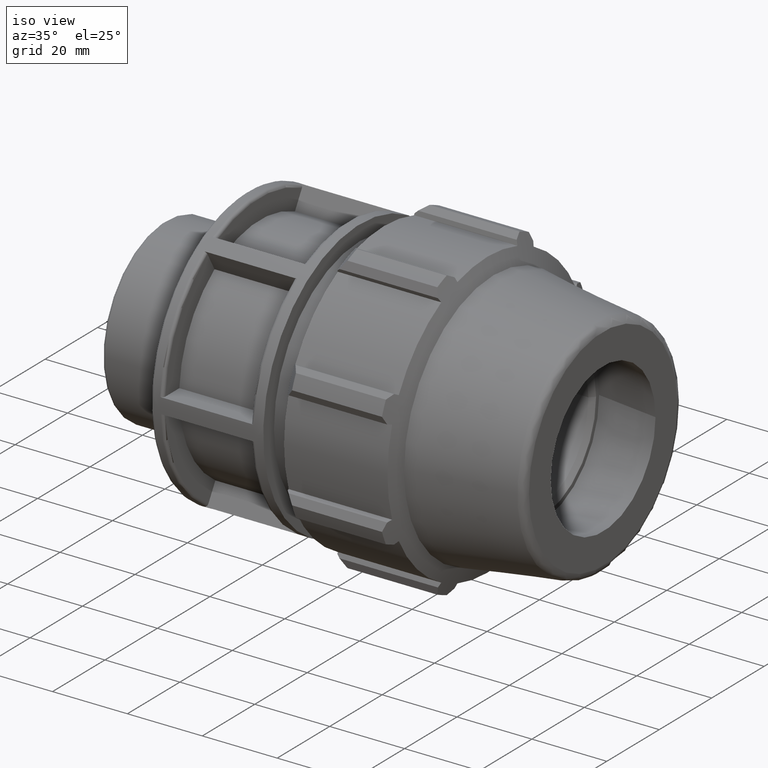
[diagram: clean part render]
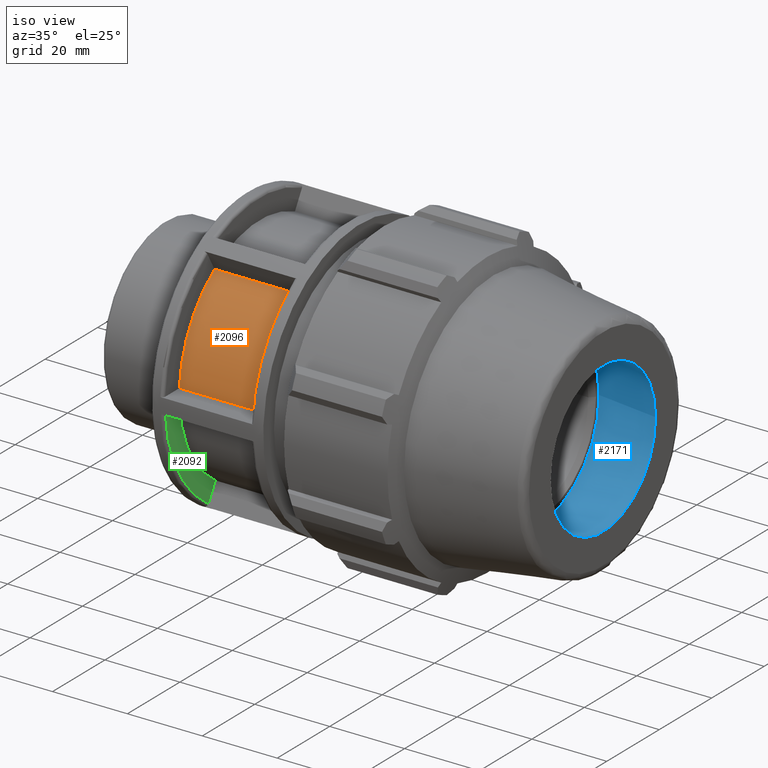
[diagram: same view with three faces highlighted in distinct colors, each labeled with its STEP entity id]
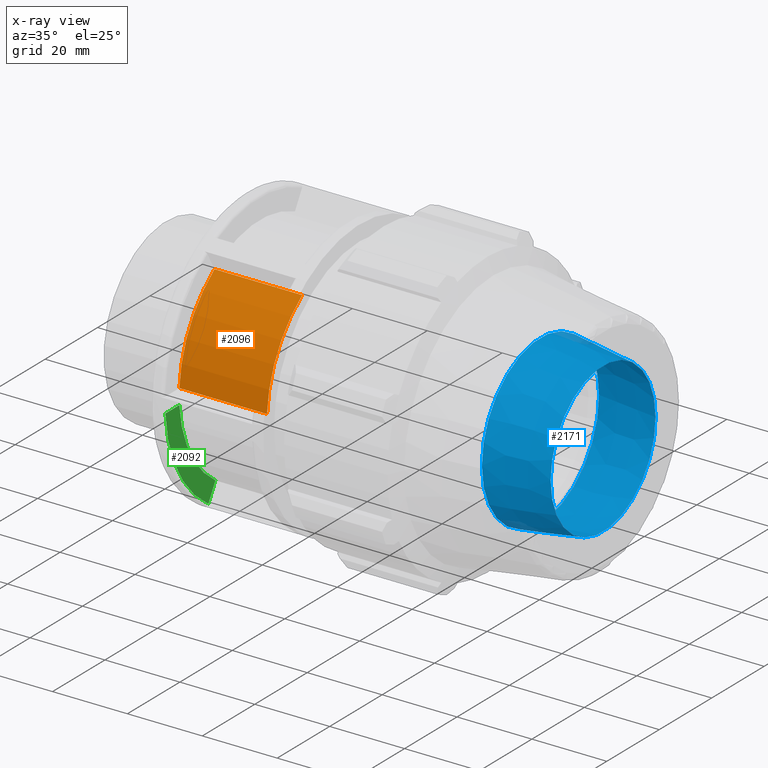
[diagram: x-ray of the same camera — body ghosted, the three highlighted faces saturated]
A machine part, iso view with three faces highlighted in distinct colors.
The next image is the same camera in x-ray (body ghosted, the three faces saturated) — at least one of them is partly hidden behind the body in this view.
Their STEP definitions:

[orange] entity #2096 — the highlighted cylindrical surface (partial cylindrical patch) has radius 30.75 mm, axis along (1, 0, 0).
#92=LINE('',#3368,#236);
#95=LINE('',#3373,#239);
#236=VECTOR('',#2555,23.4);
#239=VECTOR('',#2560,23.4);
#374=CYLINDRICAL_SURFACE('',#2257,30.75);
#526=FACE_OUTER_BOUND('',#655,.T.);
#655=EDGE_LOOP('',(#1530,#1531,#1532,#1533));
#775=CIRCLE('',#2223,30.75);
#783=CIRCLE('',#2250,30.75);
#894=VERTEX_POINT('',#3277);
#895=VERTEX_POINT('',#3279);
#910=VERTEX_POINT('',#3367);
#911=VERTEX_POINT('',#3371);
#1110=EDGE_CURVE('',#894,#895,#775,.T.);
#1135=EDGE_CURVE('',#910,#895,#92,.T.);
#1138=EDGE_CURVE('',#894,#911,#95,.T.);
#1148=EDGE_CURVE('',#911,#910,#783,.T.);
#1530=ORIENTED_EDGE('',*,*,#1135,.T.);
#1531=ORIENTED_EDGE('',*,*,#1110,.F.);
#1532=ORIENTED_EDGE('',*,*,#1138,.T.);
#1533=ORIENTED_EDGE('',*,*,#1148,.T.);
#2096=ADVANCED_FACE('',(#526),#374,.T.);
#2223=AXIS2_PLACEMENT_3D('',#3280,#2504,#2505);
#2250=AXIS2_PLACEMENT_3D('',#3393,#2584,#2585);
#2257=AXIS2_PLACEMENT_3D('',#3401,#2599,#2600);
#2504=DIRECTION('center_axis',(1.,0.,0.));
#2505=DIRECTION('ref_axis',(0.,0.,-1.));
#2555=DIRECTION('',(1.,0.,0.));
#2560=DIRECTION('',(-1.,0.,0.));
#2584=DIRECTION('center_axis',(1.,0.,0.));
#2585=DIRECTION('ref_axis',(0.,0.,-1.));
#2599=DIRECTION('center_axis',(1.,0.,0.));
#2600=DIRECTION('ref_axis',(0.,1.,0.));
#3277=CARTESIAN_POINT('',(48.7428571428571,-17.2766029175754,25.4377965167667));
#3279=CARTESIAN_POINT('',(48.7428571428571,-30.6938812062919,1.85692124066671));
#3280=CARTESIAN_POINT('Origin',(48.7428571428571,0.,0.));
#3367=CARTESIAN_POINT('',(25.3428571428571,-30.6938812062919,1.85692124066671));
#3368=CARTESIAN_POINT('',(37.0428571428572,-30.6938812062919,1.85692124066671));
#3371=CARTESIAN_POINT('',(25.3428571428571,-17.2766029175754,25.4377965167667));
#3373=CARTESIAN_POINT('',(37.0428571428572,-17.2766029175754,25.4377965167667));
#3393=CARTESIAN_POINT('Origin',(25.3428571428571,0.,0.));
#3401=CARTESIAN_POINT('Origin',(37.0428571428571,0.,0.));

[blue] entity #2171 — the highlighted conical surface has half-angle 8 deg.
#57=CONICAL_SURFACE('',#2384,21.17451983287,8.00000000000002);
#484=FACE_BOUND('',#743,.T.);
#601=FACE_OUTER_BOUND('',#742,.T.);
#742=EDGE_LOOP('',(#1920));
#743=EDGE_LOOP('',(#1921));
#814=CIRCLE('',#2316,22.34903966574);
#835=CIRCLE('',#2359,20.);
#1008=VERTEX_POINT('',#3688);
#1037=VERTEX_POINT('',#3816);
#1268=EDGE_CURVE('',#1008,#1008,#814,.T.);
#1329=EDGE_CURVE('',#1037,#1037,#835,.T.);
#1920=ORIENTED_EDGE('',*,*,#1268,.F.);
#1921=ORIENTED_EDGE('',*,*,#1329,.T.);
#2171=ADVANCED_FACE('',(#601,#484),#57,.F.);
#2316=AXIS2_PLACEMENT_3D('',#3689,#2781,#2782);
#2359=AXIS2_PLACEMENT_3D('',#3817,#2899,#2900);
#2384=AXIS2_PLACEMENT_3D('',#3846,#2951,#2952);
#2781=DIRECTION('center_axis',(1.,0.,0.));
#2782=DIRECTION('ref_axis',(0.,0.,-1.));
#2899=DIRECTION('center_axis',(1.,0.,0.));
#2900=DIRECTION('ref_axis',(0.,0.,-1.));
#2951=DIRECTION('center_axis',(-1.,0.,0.));
#2952=DIRECTION('ref_axis',(0.,1.,0.));
#3688=CARTESIAN_POINT('',(100.285714285714,22.34903966574,0.));
#3689=CARTESIAN_POINT('Origin',(100.285714285714,0.,0.));
#3816=CARTESIAN_POINT('',(117.,20.,0.));
#3817=CARTESIAN_POINT('Origin',(117.,0.,0.));
#3846=CARTESIAN_POINT('Origin',(108.642857142857,0.,0.));

[green] entity #2092 — the highlighted planar face has unit normal (1, 0, 0).
#89=LINE('',#3361,#233);
#90=LINE('',#3364,#234);
#233=VECTOR('',#2548,5.35832876072619);
#234=VECTOR('',#2551,5.3621661369955);
#418=PLANE('',#2251);
#522=FACE_OUTER_BOUND('',#651,.T.);
#651=EDGE_LOOP('',(#1514,#1515,#1516,#1517));
#764=CIRCLE('',#2201,36.1);
#784=CIRCLE('',#2252,30.75);
#872=VERTEX_POINT('',#3067);
#873=VERTEX_POINT('',#3078);
#908=VERTEX_POINT('',#3359);
#909=VERTEX_POINT('',#3363);
#1078=EDGE_CURVE('',#873,#872,#764,.T.);
#1132=EDGE_CURVE('',#873,#908,#89,.T.);
#1133=EDGE_CURVE('',#909,#872,#90,.T.);
#1149=EDGE_CURVE('',#909,#908,#784,.T.);
#1514=ORIENTED_EDGE('',*,*,#1078,.F.);
#1515=ORIENTED_EDGE('',*,*,#1132,.T.);
#1516=ORIENTED_EDGE('',*,*,#1149,.F.);
#1517=ORIENTED_EDGE('',*,*,#1133,.T.);
#2092=ADVANCED_FACE('',(#522),#418,.T.);
#2201=AXIS2_PLACEMENT_3D('',#3089,#2453,#2454);
#2251=AXIS2_PLACEMENT_3D('',#3394,#2586,#2587);
#2252=AXIS2_PLACEMENT_3D('',#3395,#2588,#2589);
#2453=DIRECTION('center_axis',(-1.,0.,0.));
#2454=DIRECTION('ref_axis',(0.,-0.863393221333482,-0.504531609867402));
#2548=DIRECTION('',(0.,0.5,0.866025403784439));
#2551=DIRECTION('',(0.,-1.,0.));
#2586=DIRECTION('center_axis',(1.,0.,0.));
#2587=DIRECTION('ref_axis',(0.,0.,-1.));
#2588=DIRECTION('center_axis',(1.,0.,0.));
#2589=DIRECTION('ref_axis',(0.,0.,-1.));
#3067=CARTESIAN_POINT('',(25.3428571428571,-36.0302455956024,-2.24307875933329));
#3078=CARTESIAN_POINT('',(25.3428571428571,-19.6342459507534,-30.2936690736749));
#3089=CARTESIAN_POINT('Origin',(25.3428571428571,0.,0.));
#3359=CARTESIAN_POINT('',(25.3428571428571,-16.9550815703903,-25.6532202450572));
#3361=CARTESIAN_POINT('',(25.3428571428571,-6.97770281582093,-8.37189331578483));
#3363=CARTESIAN_POINT('',(25.3428571428571,-30.6680794586069,-2.24307875933329));
#3364=CARTESIAN_POINT('',(25.3428571428571,4.20089718843708,-2.24307875933329));
#3394=CARTESIAN_POINT('Origin',(25.3428571428571,30.75,0.));
#3395=CARTESIAN_POINT('Origin',(25.3428571428571,0.,0.));